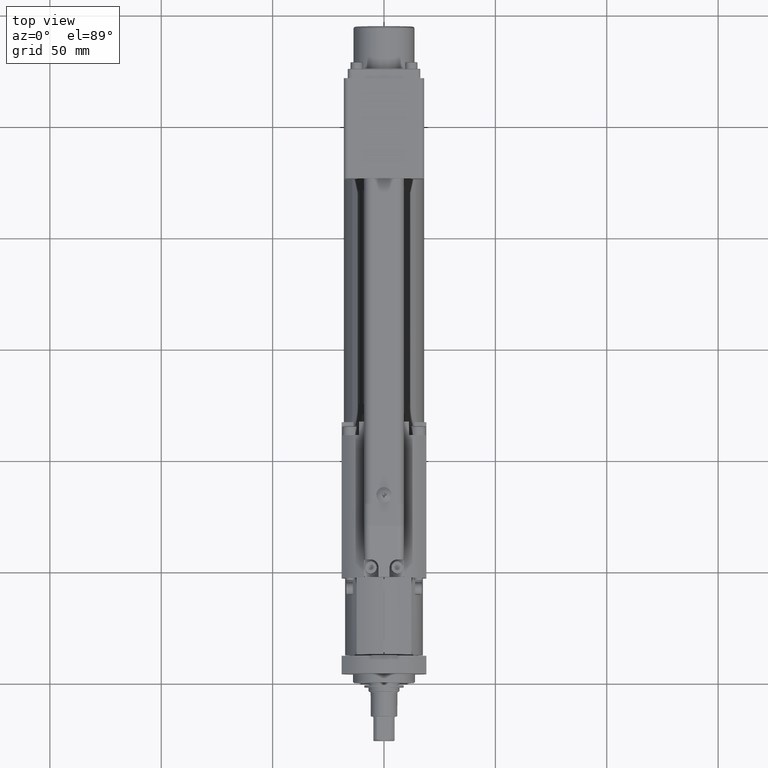
[diagram: clean part render]
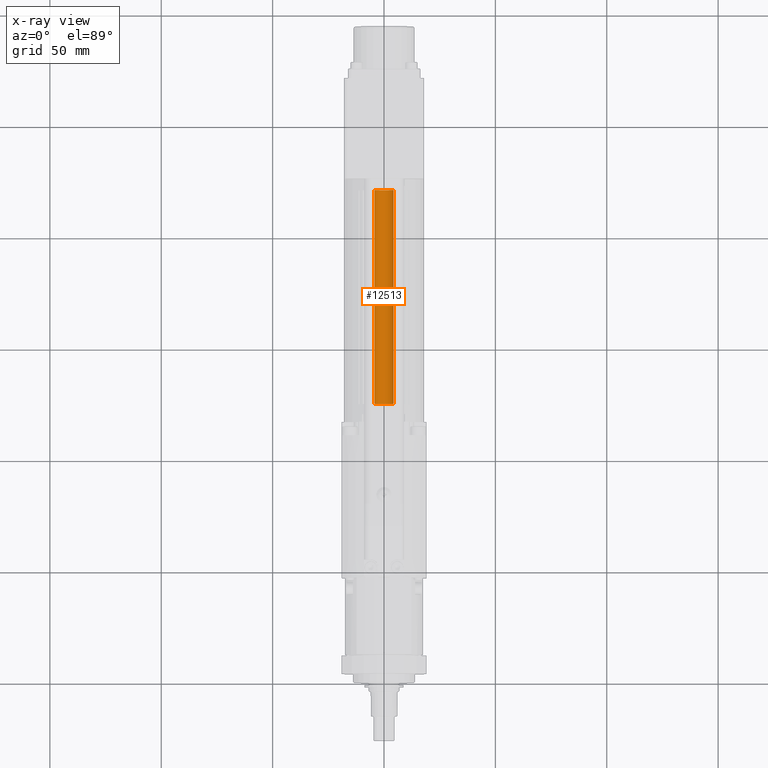
[diagram: x-ray — body ghosted, one internal face saturated and labeled with its STEP entity id]
A machine part, top view, then the same camera in x-ray: the body is ghosted and one INTERNAL B-rep face — a face not visible from any outside direction — is saturated and labeled: STEP entity #12513.
In plain terms, the highlighted cylindrical surface (edge-blend (fillet) strip) has radius 5 mm, axis along (-0, 1, -0).
Its self-contained STEP definition (entity closure, byte-faithful):
#693=CIRCLE('',#13480,5.00000000000015);
#724=CIRCLE('',#13554,5.00000000000252);
#1012=CYLINDRICAL_SURFACE('',#13634,5.00000000000015);
#1547=FACE_OUTER_BOUND('',#2331,.T.);
#2331=EDGE_LOOP('',(#9911,#9912,#9913,#9914));
#3390=LINE('',#20584,#4424);
#3391=LINE('',#20586,#4425);
#4424=VECTOR('',#16573,10.);
#4425=VECTOR('',#16576,10.);
#5406=VERTEX_POINT('',#20113);
#5407=VERTEX_POINT('',#20114);
#5481=VERTEX_POINT('',#20350);
#5482=VERTEX_POINT('',#20352);
#6844=EDGE_CURVE('',#5406,#5407,#693,.T.);
#6964=EDGE_CURVE('',#5482,#5481,#724,.T.);
#7081=EDGE_CURVE('',#5482,#5406,#3390,.T.);
#7082=EDGE_CURVE('',#5481,#5407,#3391,.T.);
#9911=ORIENTED_EDGE('',*,*,#6964,.T.);
#9912=ORIENTED_EDGE('',*,*,#7082,.T.);
#9913=ORIENTED_EDGE('',*,*,#6844,.F.);
#9914=ORIENTED_EDGE('',*,*,#7081,.F.);
#12513=ADVANCED_FACE('',(#1547),#1012,.F.);
#13480=AXIS2_PLACEMENT_3D('',#20115,#16081,#16082);
#13554=AXIS2_PLACEMENT_3D('',#20353,#16318,#16319);
#13634=AXIS2_PLACEMENT_3D('',#20585,#16574,#16575);
#16081=DIRECTION('center_axis',(1.13420931403497E-17,-1.,4.25994733154744E-42));
#16082=DIRECTION('ref_axis',(-0.848739876654077,-9.62648673293947E-18,0.528810572679123));
#16318=DIRECTION('center_axis',(1.13420931403497E-17,-1.,4.25994733154744E-42));
#16319=DIRECTION('ref_axis',(-0.848739876632896,-9.62648673269924E-18,0.528810572713118));
#16573=DIRECTION('',(-1.13420931403497E-17,1.,-4.25994733154744E-42));
#16574=DIRECTION('center_axis',(-1.13420931403497E-17,1.,-4.25994733154744E-42));
#16575=DIRECTION('ref_axis',(-0.848739876654077,-9.62648673293947E-18,0.528810572679123));
#16576=DIRECTION('',(-1.13420931403497E-17,1.,-4.25994733154744E-42));
#20113=CARTESIAN_POINT('',(-4.24369938328788,221.,20.0559471358457));
#20114=CARTESIAN_POINT('',(4.24369938320126,221.,20.0559471359289));
#20115=CARTESIAN_POINT('Origin',(-6.92513648605446E-11,221.,22.6999999993246));
#20350=CARTESIAN_POINT('',(4.24369938325762,125.,20.0559471355467));
#20352=CARTESIAN_POINT('',(-4.24369938302644,125.,20.0559471354678));
#20353=CARTESIAN_POINT('Origin',(9.09948744648535E-11,125.,22.6999999991137));
#20584=CARTESIAN_POINT('',(-4.24369938328788,125.,20.0559471358457));
#20585=CARTESIAN_POINT('Origin',(-6.92502760196032E-11,125.,22.6999999993246));
#20586=CARTESIAN_POINT('',(4.24369938320126,125.,20.0559471359289));